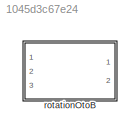
MODEL slx_1045d3c67e24
KIND library
CONFIG AbsTol = auto
CONFIG EnableMultiTasking = off
CONFIG FixedStep = auto
CONFIG MaxStep = auto
CONFIG MinStep = auto
CONFIG RelTol = 1e-3
CONFIG SampleTimeConstraint = Unconstrained
CONFIG Solver = VariableStepAuto
CONFIG SolverName = VariableStepAuto
CONFIG StartTime = 0.0
CONFIG StopTime = 10.0
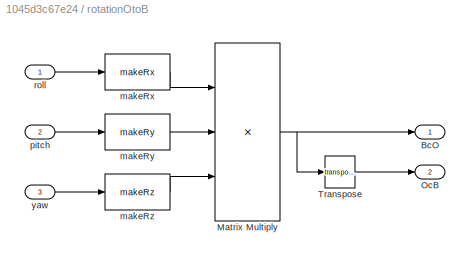
BLOCK [SubSystem] rotationOtoB
  Ports = [3, 2]
  RequestExecContextInheritance = off
BLOCK [Outport] rotationOtoB/BcO
BLOCK [Product] rotationOtoB/Matrix Multiply
  Inputs = 3
  Multiplication = Matrix(*)
  Ports = [3, 1]
BLOCK [Outport] rotationOtoB/OcB
  Port = 2
BLOCK [Math] rotationOtoB/Transpose
  Operator = transpose
  Ports = [1, 1]
BLOCK [Reference] rotationOtoB/makeRx  REF=rotationAboutX/makeRx
  Ports = [1, 1]
  SourceBlock = rotationAboutX/makeRx
  SourceType = SubSystem
BLOCK [Reference] rotationOtoB/makeRy  REF=rotationAboutY/makeRy
  Ports = [1, 1]
  SourceBlock = rotationAboutY/makeRy
  SourceType = SubSystem
BLOCK [Reference] rotationOtoB/makeRz  REF=rotationAboutZ/makeRz
  Ports = [1, 1]
  SourceBlock = rotationAboutZ/makeRz
  SourceType = SubSystem
BLOCK [Inport] rotationOtoB/pitch
  Port = 2
BLOCK [Inport] rotationOtoB/roll
BLOCK [Inport] rotationOtoB/yaw
  Port = 3
NET rotationOtoB/Matrix Multiply:1 -> rotationOtoB/BcO:1, rotationOtoB/Transpose:1
LINE rotationOtoB/Transpose:1 -> rotationOtoB/OcB:1
LINE rotationOtoB/makeRx:1 -> rotationOtoB/Matrix Multiply:1
LINE rotationOtoB/makeRy:1 -> rotationOtoB/Matrix Multiply:2
LINE rotationOtoB/makeRz:1 -> rotationOtoB/Matrix Multiply:3
LINE rotationOtoB/pitch:1 -> rotationOtoB/makeRy:1
LINE rotationOtoB/roll:1 -> rotationOtoB/makeRx:1
LINE rotationOtoB/yaw:1 -> rotationOtoB/makeRz:1
note: NET lines group one-source signal fan-out (src -> all destinations, sorted); 1:1 wires keep LINE
